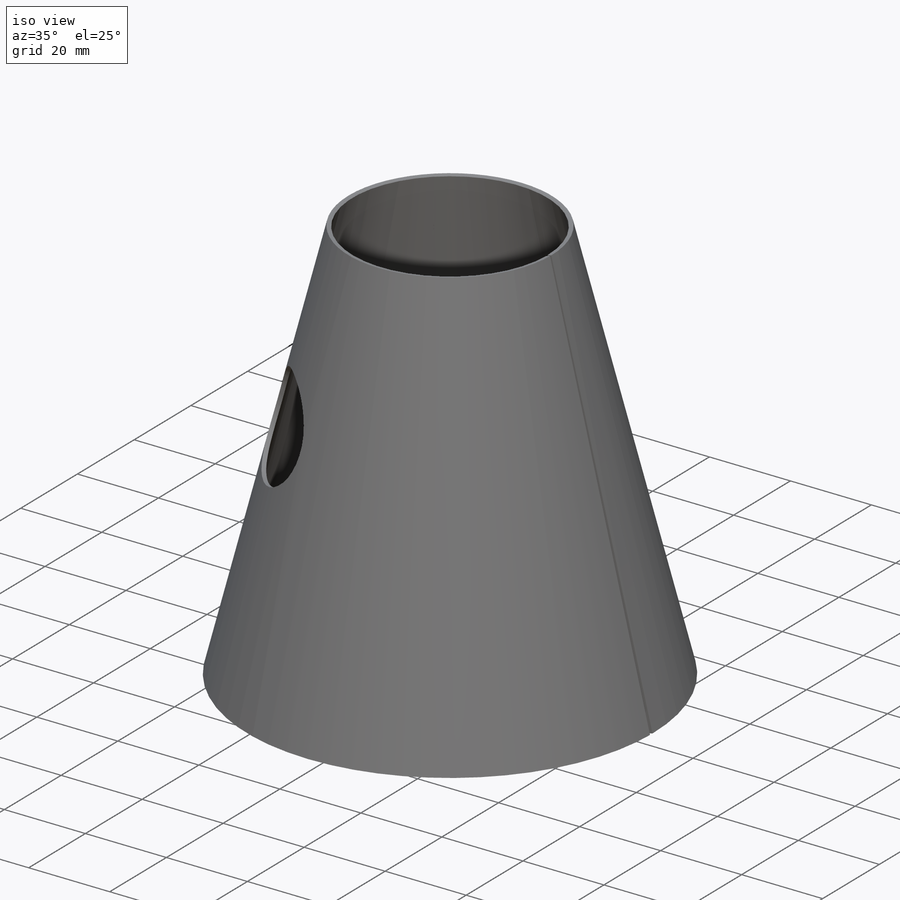
[diagram: iso view]
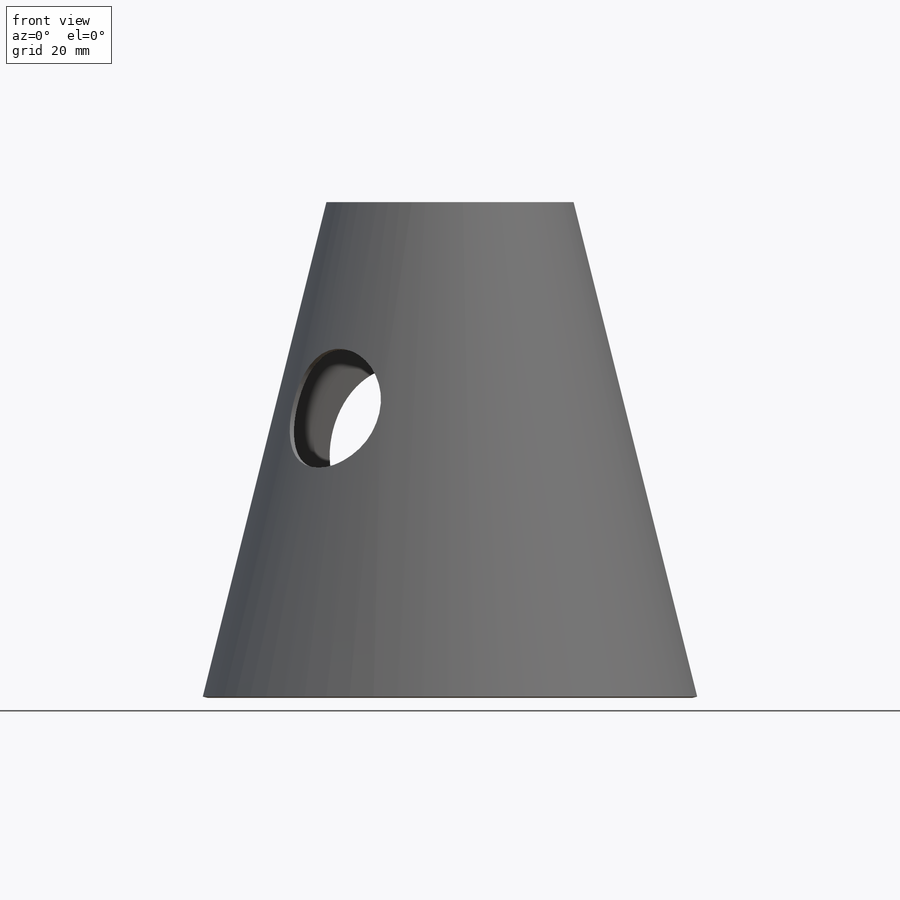
[diagram: front view]
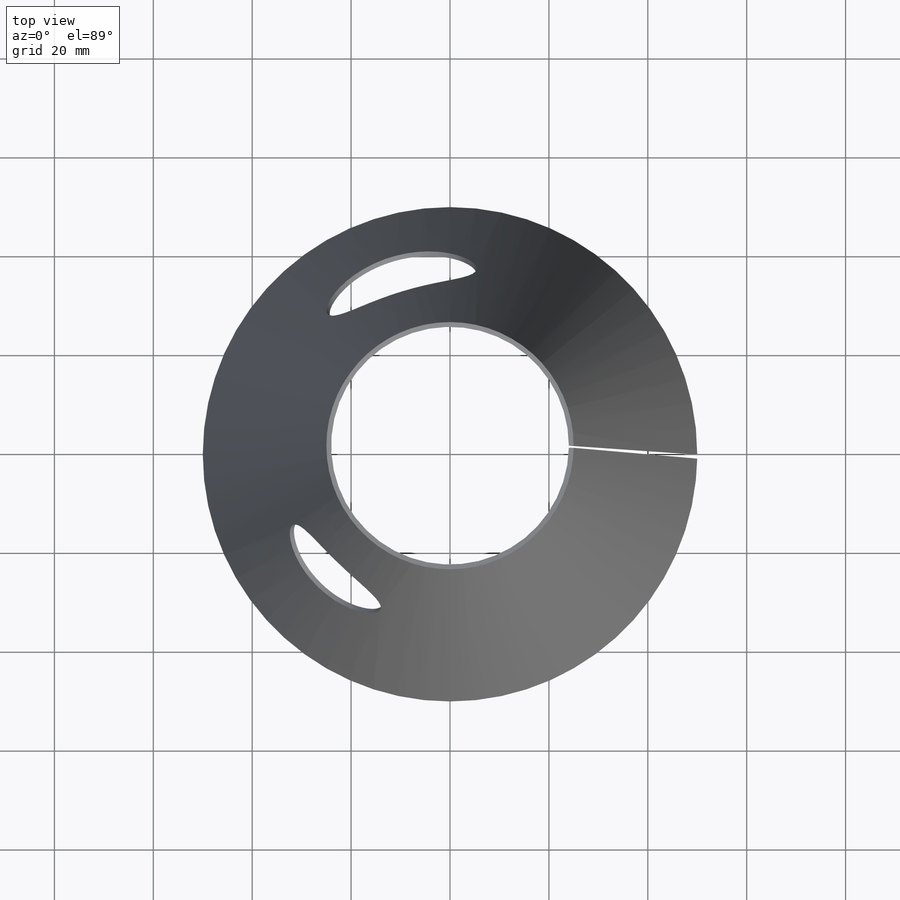
[diagram: top view]
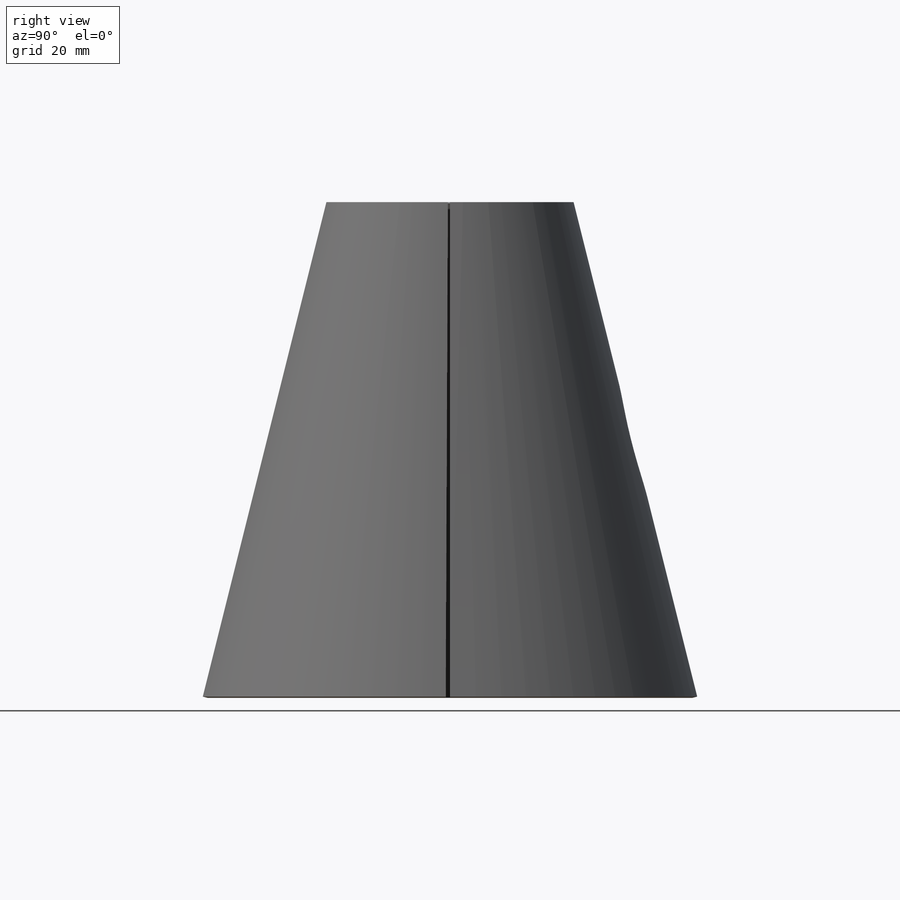
[diagram: right view]
SOLIDWORKS PART (.sldprt)
format: sldprt  version: not decoded by parser v0  size: 346,624 bytes
history: native  units: mm
features: sketch x10, plane x3, material x1, cut_extrude x1, sheet_metal_op x1 + 3 further entries (+11 scaffold rows collapsed; 1 parser-record rows omitted)
feature tree (31):
  scaffold x11  (default folders/planes/origin — collapsed)
  material  "Material <nicht festgelegt>"
  plane  "Ebene vorne"
  plane  "Ebene oben"
  plane  "Ebene rechts"
  sketch  "Skizze2"  dims[c1.D1=100.0mm c1.D2=50.0mm c2.D1=100.0mm c2.D2=50.0mm c2.D3=50.0mm c3.D2=100.0mm c3.D4=100.0mm c3.D5=200.0mm c3.D1=100.0mm c4.D4=~103.077641mm c4.D5=200.0mm c4.D1=100.0mm c5.D1=359.0deg c5.D3=1.0mm c5.D4=1.0mm c6.D1=2.5mm c6.D2=0.45 c6.D3=~0.195952deg]
  sketch  "Skizze-Winkel2"  dims[c1.D1=~49.029857mm c1.D4=~6265.732015mm c1.D5=1.0 c1.D8=0.0deg c1.D9=0.0deg c2.D1=0.0mm]
  sketch  "Abwicklung-Skizze2"  dims[D1=0.0mm]
  parser-record x1  (decoder bookkeeping rows leaked as tree rows — omitted from the tree; the rows remain in map.json)
  sketch  "Skizze15"  dims[D1=~32.12252mm]
  cut_extrude  "Schnitt-Linear austragen1"  Depth=1mm Skizzen-Transformation3=0
  sketch  "Biegung-Linien3"
  sketch  "Rahmen3"
  sheet_metal_op  "Blech5"
  "Abwicklung5"
  sketch  "Biegung-Linien4"
  sketch  "Rahmen4"  dims[Skizzen-Transformation1=0.0 D1=2.5mm D2=~25.783101deg D3=~0.195952deg]
  "Abwicklung5"
  sketch  "Biegung-Linien4"
  sketch  "Rahmen4"
  "Abwickeln-<Biegung-Rundung1>1"  Skizzen-Transformation1=0
decode coverage: 6 of 12 modeling features carry decoded parameters; 3 rows unclassified (native names shown)
note: ~ marks probable driven/reference dimensions
note: suppression state not decoded; provenance and decode notes live in map.json
